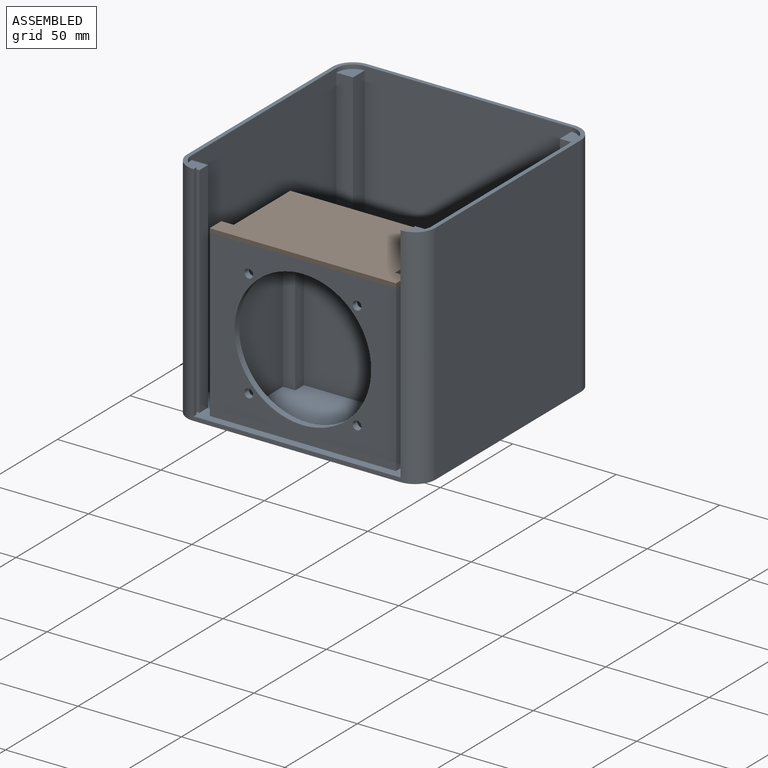
[diagram: assembled view]
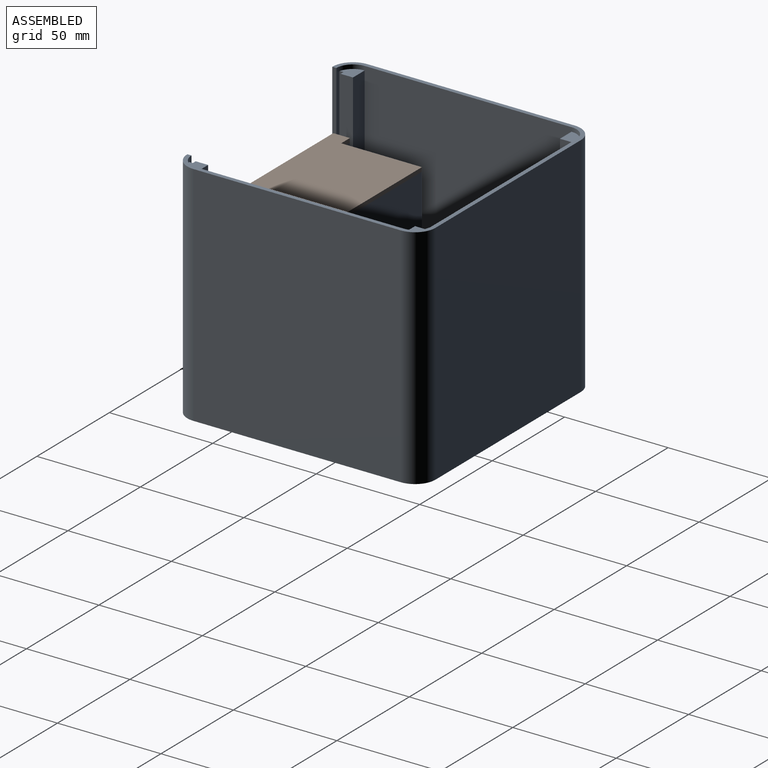
[diagram: assembled view, second angle]
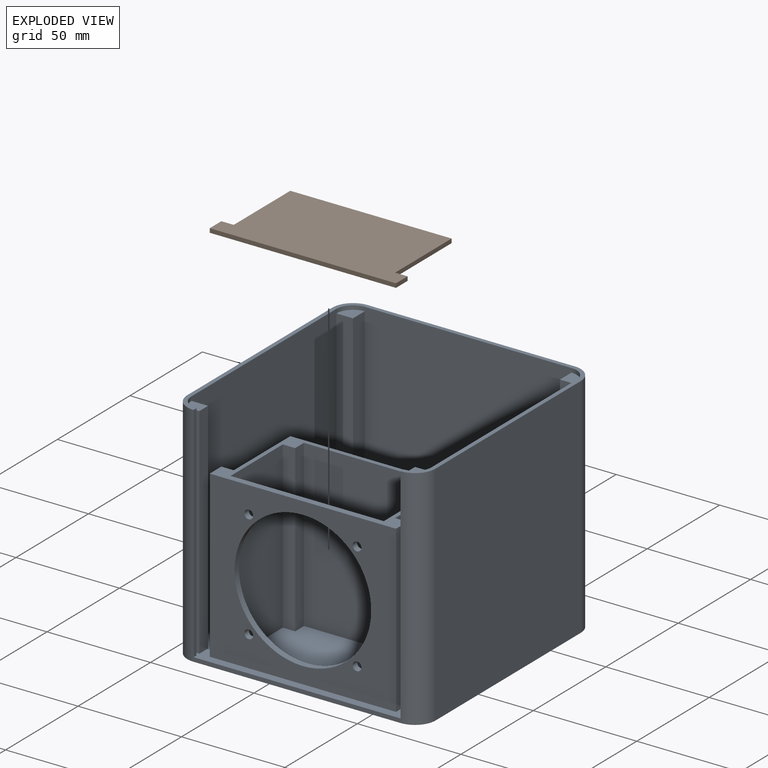
[diagram: exploded view]
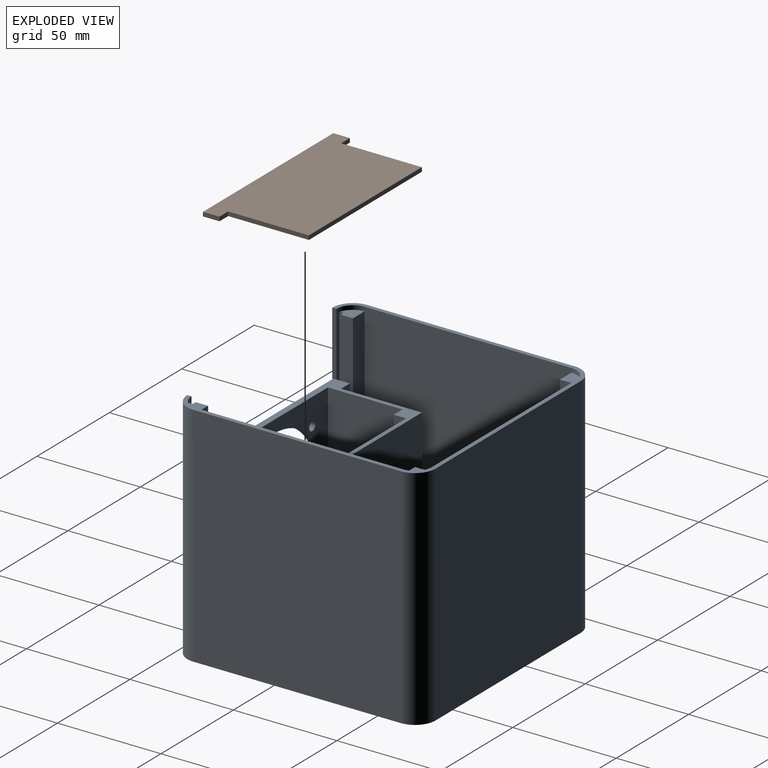
[diagram: exploded view, second angle]
FCSTD DOCUMENT  (FreeCAD 1.0R39109 (Git))
Label: boubox
License: All rights reserved
LicenseURL: https://en.wikipedia.org/wiki/All_rights_reserved
objects: App::Link×2, App::FeaturePython×2, Assembly::JointGroup×1, Assembly::AssemblyObject×1
EXTERNAL_REF file=bouboux_base.FCStd obj=Body
EXTERNAL_REF file=speaker_cover.FCStd obj=Body001

FEATURE [App::Link] Body
  LinkPlacement = pos=(7.38659,4.95915,2.14746) rot=(0,0,1;0rad)
  LinkedObject = -> <external bouboux_base.FCStd>#Body
  Placement = pos=(7.38659,4.95915,2.14746) rot=(0,0,1;0rad)
FEATURE [App::FeaturePython] GroundedJoint001  # Assembly grounded joint (typed FeaturePython)
  ObjectToGround = -> Body
  Placement = pos=(7.38659,4.95915,2.14746) rot=(0,0,1;0rad)
FEATURE [App::Link] speaker_cover
  LinkPlacement = pos=(7.38659,4.95915,2.14746) rot=(0,0,1;0rad)
  LinkedObject = -> <external speaker_cover.FCStd>#Body001
  Placement = pos=(7.38659,4.95915,2.14746) rot=(0,0,1;0rad)
FEATURE [App::FeaturePython] Joint  label="Fixed"  # Assembly joint (typed FeaturePython)
  Activated = true
  AngleMax = 0
  AngleMin = 0
  Detach1 = false
  Detach2 = false
  Distance = 0
  Distance2 = 0
  EnableAngleMax = false
  EnableAngleMin = false
  EnableLengthMax = false
  EnableLengthMin = false
  JointType = 0 (Fixed)
  LengthMax = 0
  LengthMin = 0
  Placement1 = pos=(15,4,82) rot=(0,0,1;0rad)
  Placement2 = pos=(15,4,82) rot=(0,0,1;0rad)
  Reference1 = -> Assembly [speaker_cover.Vertex1,speaker_cover.Vertex1]
  Reference2 = -> Assembly [Body.Vertex68,Body.Vertex68]
FEATURE [Assembly::JointGroup] Joints
  Group = -> [GroundedJoint001,Joint]
FEATURE [Assembly::AssemblyObject] Assembly
  Group = -> [Joints,Body,GroundedJoint001,speaker_cover,Joint]
  Origin = -> Origin
  Type = Assembly

RESOLVED EXTERNAL PARTS (link-assembly join: the EXTERNAL_REF files above that resolve inside this repo's crawl, each included once):
---- part bouboux_base.FCStd = doc fcstd_2d025fac084d ----
FCSTD DOCUMENT  (FreeCAD 1.0R39109 (Git))
Label: bouboux_base
License: All rights reserved
LicenseURL: https://en.wikipedia.org/wiki/All_rights_reserved
objects: PartDesign::Pocket×15, Sketcher::SketchObject×13, PartDesign::Pad×8, App::VarSet×1, PartDesign::Fillet×1, PartDesign::Body×1, Measure::MeasureRadius×1
note: 99 computed .brp shape members not serialized (recipe doc carries the construction recipe); baked Part::Feature solids carry a one-line shape summary decoded from their .brp

FEATURE [Sketcher::SketchObject] Sketch
  ArcFitTolerance = 1e-06
  AttachmentSupport = -> [XY_Plane]
  FullyConstrained = true
  MakeInternals = false
  MapMode = 5
  sketch-geometry (4):
    g0: LineSegment StartX=0 StartY=0 StartZ=0 EndX=120 EndY=0 EndZ=0
    g1: LineSegment StartX=120 StartY=0 StartZ=0 EndX=120 EndY=120 EndZ=0
    g2: LineSegment StartX=120 StartY=120 StartZ=0 EndX=0 EndY=120 EndZ=0
    g3: LineSegment StartX=0 StartY=120 StartZ=0 EndX=0 EndY=0 EndZ=0
  constraints (11):
    c: Coincident(g0,g1)
    c: Coincident(g1,g2)
    c: Coincident(g2,g3)
    c: Coincident(g3,g0)
    c: Horizontal(g0)
    c: Horizontal(g2)
    c: Vertical(g1)
    c: Vertical(g3)
    c: Distance(g1,g3) = 120
    c: Coincident(g0,g-1)
    c: DistanceY(g1,g1) = 120
FEATURE [PartDesign::Pad] Pad
  Direction = (0,0,1)
  Length = 110
  Length2 = 10
  Profile = -> Sketch
  ReferenceAxis = -> Sketch [N_Axis]
  Refine = true
  Suppressed = false
  Type = 0
  expr: Length = VarSet.full_height
FEATURE [App::VarSet] VarSet
  full_height = 110
  round_radius = 10
  speaker_cavity_height = 80
  width = 2
FEATURE [PartDesign::Fillet] Fillet
  Base = -> Pad [Edge5,Edge2,Edge1,Edge8]
  BaseFeature = -> Pad
  Radius = 10
  Refine = true
  SupportTransform = false
  Suppressed = false
  UseAllEdges = false
  expr: Radius = VarSet.round_radius
FEATURE [Sketcher::SketchObject] Sketch001
  ArcFitTolerance = 1e-06
  AttachmentSupport = -> [Fillet]
  ExternalGeometry = -> [Fillet]
  FullyConstrained = true
  MakeInternals = false
  MapMode = 5
  Placement = pos=(0,0,0) rot=(1,0,0;1.5708rad)
  sketch-geometry (4):
    g0: LineSegment StartX=10 StartY=110 StartZ=0 EndX=10 EndY=5 EndZ=0
    g1: LineSegment StartX=10 StartY=5 StartZ=0 EndX=110 EndY=5 EndZ=0
    g2: LineSegment StartX=110 StartY=5 StartZ=0 EndX=110 EndY=110 EndZ=0
    g3: LineSegment StartX=110 StartY=110 StartZ=0 EndX=10 EndY=110 EndZ=0
  constraints (12):
    c: Coincident(g0,g1)
    c: Coincident(g1,g2)
    c: Coincident(g2,g3)
    c: Coincident(g3,g0)
    c: Vertical(g0)
    c: Vertical(g2)
    c: Horizontal(g1)
    c: Horizontal(g3)
    c: Distance(g-4,g1) = 5
    c: PointOnObject(g0,g-5)
    c: PointOnObject(g1,g-6)
    c: PointOnObject(g0,g-3)
FEATURE [PartDesign::Pocket] Pocket  label="front_plate_pocket"
  BaseFeature = -> Fillet
  Direction = (0,1,-2e-16)
  Length = 2
  Length2 = 5
  Profile = -> Sketch001
  ReferenceAxis = -> Sketch001 [N_Axis]
  Refine = true
  Suppressed = false
  Type = 0
FEATURE [Sketcher::SketchObject] Sketch002
  ArcFitTolerance = 1e-06
  AttachmentSupport = -> [Pocket]
  ExternalGeometry = -> [Pocket]
  FullyConstrained = true
  MakeInternals = false
  MapMode = 5
  Placement = pos=(0,2,0) rot=(1,0,0;1.5708rad)
  sketch-geometry (2):
    g0: Circle CenterX=60 CenterY=43 CenterZ=0 NormalX=0 NormalY=0 NormalZ=1 AngleXU=0 Radius=33
    g1: GeomPoint X=60 Y=5 Z=0
  constraints (4):
    c: Diameter(g0) = 66
    c: Symmetric(g-3,g-3,g1)
    c: Vertical(g1,g0)
    c: Distance(g0,g-3) = 5
FEATURE [PartDesign::Pocket] Pocket001  label="speaker_hole"
  BaseFeature = -> Pocket
  Direction = (0,1,-2e-16)
  Length = 30
  Length2 = 5
  Profile = -> Sketch002
  ReferenceAxis = -> Sketch002 [N_Axis]
  Refine = true
  Suppressed = false
  Type = 0
FEATURE [Sketcher::SketchObject] Sketch003
  ArcFitTolerance = 1e-06
  AttachmentSupport = -> [Pocket001]
  ExternalGeometry = -> [Pocket001]
  FullyConstrained = true
  MakeInternals = false
  MapMode = 5
  Placement = pos=(0,0,110) rot=(0,0,1;0rad)
  expr: Constraints[13] = VarSet.width
  expr: Constraints[21] = VarSet.width
  expr: Constraints[28] = VarSet.width
  expr: Constraints[5] = VarSet.width
  sketch-geometry (12):
    g0: LineSegment StartX=110 StartY=4 StartZ=0 EndX=10 EndY=4 EndZ=0
    g1: LineSegment StartX=10 StartY=4 StartZ=0 EndX=10 EndY=10 EndZ=0
    g2: LineSegment StartX=10 StartY=10 StartZ=0 EndX=2 EndY=10 EndZ=0
    g3: LineSegment StartX=2 StartY=10 StartZ=0 EndX=2 EndY=110 EndZ=0
    g4: LineSegment StartX=2 StartY=110 StartZ=0 EndX=10 EndY=110 EndZ=0
    g5: LineSegment StartX=10 StartY=110 StartZ=0 EndX=10 EndY=118 EndZ=0
    g6: LineSegment StartX=10 StartY=118 StartZ=0 EndX=110 EndY=118 EndZ=0
    g7: LineSegment StartX=110 StartY=110 StartZ=0 EndX=110 EndY=118 EndZ=0
    g8: LineSegment StartX=110 StartY=4 StartZ=0 EndX=110 EndY=10 EndZ=0
    g9: LineSegment StartX=110 StartY=10 StartZ=0 EndX=118 EndY=10 EndZ=0
    g10: LineSegment StartX=118 StartY=10 StartZ=0 EndX=118 EndY=110 EndZ=0
    g11: LineSegment StartX=118 StartY=110 StartZ=0 EndX=110 EndY=110 EndZ=0
  constraints (32):
    c: Horizontal(g0)
    c: Coincident(g0,g1)
    c: Coincident(g1,g-3)
    c: Coincident(g1,g2)
    c: Horizontal(g2)
    c: DistanceX(g-8,g2) = 2
    c: Coincident(g2,g3)
    c: Vertical(g3)
    c: Coincident(g3,g4)
    c: Coincident(g4,g-9)
    c: Horizontal(g4)
    c: Coincident(g4,g5)
    c: Vertical(g5)
    c: DistanceY(g5,g-10) = 2
    c: Coincident(g5,g6)
    c: Horizontal(g6)
    c: Coincident(g7,g-11)
    c: Vertical(g7)
    c: Coincident(g6,g7)
    c: Coincident(g8,g-6)
    c: Coincident(g8,g9)
    c: DistanceX(g9,g-7) = 2
    c: Horizontal(g9)
    c: Coincident(g9,g10)
    c: Vertical(g10)
    c: Coincident(g10,g11)
    c: Coincident(g11,g7)
    c: Horizontal(g11)
    c: DistanceY(g-4,g0) = 2
    c: Vertical(g1)
    c: Vertical(g8)
    c: Coincident(g8,g0)
FEATURE [PartDesign::Pocket] Pocket002
  BaseFeature = -> Pocket001
  Direction = (0,0,-1)
  Length = 108
  Length2 = 5
  Profile = -> Sketch003
  ReferenceAxis = -> Sketch003 [N_Axis]
  Refine = true
  Suppressed = false
  Type = 0
  expr: Length = VarSet.full_height - VarSet.width
FEATURE [Sketcher::SketchObject] Sketch004
  ArcFitTolerance = 1e-06
  AttachmentSupport = -> [Pocket002]
  ExternalGeometry = -> [Pocket002]
  FullyConstrained = true
  MakeInternals = false
  MapMode = 5
  Placement = pos=(0,0,110) rot=(0,0,1;0rad)
  sketch-geometry (10):
    g0: LineSegment StartX=2 StartY=110 StartZ=0 EndX=2 EndY=10 EndZ=0
    g1: LineSegment StartX=10 StartY=2 StartZ=0 EndX=110 EndY=2 EndZ=0
    g2: LineSegment StartX=118 StartY=10 StartZ=0 EndX=118 EndY=110 EndZ=0
    g3: LineSegment StartX=110 StartY=118 StartZ=0 EndX=10 EndY=118 EndZ=0
    g4: ArcOfCircle CenterX=10 CenterY=110 CenterZ=0 NormalX=0 NormalY=0 NormalZ=1 AngleXU=0 Radius=8 StartAngle=1.5708 EndAngle=3.14159
    g5: ArcOfCircle CenterX=10 CenterY=10 CenterZ=0 NormalX=0 NormalY=0 NormalZ=1 AngleXU=0 Radius=8 StartAngle=3.14159 EndAngle=4.71239
    g6: ArcOfCircle CenterX=110 CenterY=10 CenterZ=0 NormalX=0 NormalY=0 NormalZ=1 AngleXU=0 Radius=8 StartAngle=4.71239 EndAngle=6.28319
    g7: ArcOfCircle CenterX=110 CenterY=110 CenterZ=0 NormalX=0 NormalY=0 NormalZ=1 AngleXU=0 Radius=8 StartAngle=-8.79e-14 EndAngle=1.5708
    g8: GeomPoint [constr] X=2 Y=118 Z=0
    g9: GeomPoint [constr] X=118 Y=2 Z=0
  constraints (21):
    c: Tangent(g0,g4) = -1.5708
    c: Tangent(g0,g5) = -1.5708
    c: Tangent(g1,g5) = -1.5708
    c: Tangent(g1,g6) = -1.5708
    c: Tangent(g2,g6) = -1.5708
    c: Tangent(g2,g7) = -1.5708
    c: Tangent(g3,g7) = -1.5708
    c: Tangent(g3,g4) = -1.5708
    c: Vertical(g0)
    c: Vertical(g2)
    c: Horizontal(g1)
    c: Horizontal(g3)
    c: Equal(g5,g6)
    c: Equal(g6,g7)
    c: PointOnObject(g8,g0)
    c: PointOnObject(g8,g3)
    c: PointOnObject(g9,g1)
    c: PointOnObject(g9,g2)
    c: Coincident(g1,g-15)
    c: Coincident(g3,g-13)
    c: Coincident(g0,g-8)
FEATURE [PartDesign::Pocket] Pocket003
  BaseFeature = -> Pocket002
  Direction = (0,0,-1)
  Length = 2
  Length2 = 5
  Profile = -> Sketch004
  ReferenceAxis = -> Sketch004 [N_Axis]
  Refine = true
  Suppressed = false
  Type = 0
  expr: Length = VarSet.width
FEATURE [Sketcher::SketchObject] Sketch005
  ArcFitTolerance = 1e-06
  AttachmentSupport = -> [Pocket003]
  ExternalGeometry = -> [Pocket003]
  FullyConstrained = true
  MakeInternals = false
  MapMode = 5
  Placement = pos=(0,0,2) rot=(0,0,1;0rad)
  expr: Constraints[12] = VarSet.width
  expr: Constraints[15] = VarSet.width
  expr: Constraints[7] = VarSet.width
  sketch-geometry (9):
    g0: LineSegment StartX=97 StartY=4 StartZ=0 EndX=97 EndY=44 EndZ=0
    g1: LineSegment StartX=97 StartY=4 StartZ=0 EndX=99 EndY=4 EndZ=0
    g2: LineSegment StartX=99 StartY=4 StartZ=0 EndX=99 EndY=44 EndZ=0
    g3: LineSegment StartX=99 StartY=44 StartZ=0 EndX=99 EndY=46 EndZ=0
    g4: LineSegment StartX=99 StartY=46 StartZ=0 EndX=21 EndY=46 EndZ=0
    g5: LineSegment StartX=23 StartY=44 StartZ=0 EndX=97 EndY=44 EndZ=0
    g6: LineSegment StartX=23 StartY=4 StartZ=0 EndX=23 EndY=44 EndZ=0
    g7: LineSegment StartX=21 StartY=46 StartZ=0 EndX=21 EndY=4 EndZ=0
    g8: LineSegment StartX=23 StartY=4 StartZ=0 EndX=21 EndY=4 EndZ=0
  constraints (27):
    c: Vertical(g0)
    c: PointOnObject(g0,g-3)
    c: DistanceY(g0,g0) = 40
    c: Coincident(g0,g1)
    c: PointOnObject(g1,g-3)
    c: Coincident(g1,g2)
    c: Vertical(g2)
    c: DistanceX(g1,g1) = 2
    c: Coincident(g3,g4)
    c: Vertical(g3)
    c: Horizontal(g4)
    c: Coincident(g3,g2)
    c: DistanceY(g3,g3) = 2
    c: Coincident(g5,g0)
    c: Horizontal(g5)
    c: DistanceY(g5,g4) = 2
    c: Distance(g0,g-9) = 4
    c: Vertical(g6)
    c: PointOnObject(g6,g-3)
    c: DistanceX(g6,g-9) = 4
    c: Coincident(g6,g5)
    c: Coincident(g7,g4)
    c: Vertical(g7)
    c: PointOnObject(g7,g-3)
    c: Distance(g6,g7) = 2
    c: Coincident(g8,g6)
    c: Coincident(g8,g7)
FEATURE [Sketcher::SketchObject] Sketch007  label="speaker_fixes"
  ArcFitTolerance = 1e-06
  AttachmentSupport = -> [Pocket003]
  ExternalGeometry = -> [Sketch002]
  FullyConstrained = true
  MakeInternals = false
  MapMode = 5
  Placement = pos=(0,2,0) rot=(1,0,0;1.5708rad)
  sketch-geometry (9):
    g0: Circle CenterX=60 CenterY=43 CenterZ=0 NormalX=0 NormalY=0 NormalZ=1 AngleXU=0 Radius=37
    g1: LineSegment StartX=33.837 StartY=69.163 StartZ=0 EndX=86.163 EndY=16.837 EndZ=0
    g2: LineSegment StartX=33.837 StartY=16.837 StartZ=0 EndX=86.163 EndY=69.163 EndZ=0
    g3: Circle CenterX=86.163 CenterY=16.837 CenterZ=0 NormalX=0 NormalY=0 NormalZ=1 AngleXU=0 Radius=2.1
    g4: Circle CenterX=86.163 CenterY=69.163 CenterZ=0 NormalX=0 NormalY=0 NormalZ=1 AngleXU=0 Radius=7.3e-15
    g5: Circle CenterX=86.163 CenterY=69.163 CenterZ=0 NormalX=0 NormalY=0 NormalZ=1 AngleXU=0 Radius=2e-16
    g6: Circle CenterX=86.163 CenterY=69.163 CenterZ=0 NormalX=0 NormalY=0 NormalZ=1 AngleXU=0 Radius=2.1
    g7: Circle CenterX=33.837 CenterY=69.163 CenterZ=0 NormalX=0 NormalY=0 NormalZ=1 AngleXU=0 Radius=2.1
    g8: Circle CenterX=33.837 CenterY=16.837 CenterZ=0 NormalX=0 NormalY=0 NormalZ=1 AngleXU=0 Radius=2.1
  constraints (22):
    c: Coincident(g0,g-3)
    c: Diameter(g0) = 74
    c: Angle(g1) = -0.785398
    c: PointOnObject(g0,g1)
    c: PointOnObject(g1,g0)
    c: PointOnObject(g1,g0)
    c: Angle(g2) = 0.785398
    c: PointOnObject(g2,g0)
    c: PointOnObject(g0,g2)
    c: PointOnObject(g2,g0)
    c: Diameter(g3) = 4.2
    c: Coincident(g3,g1)
    c: Coincident(g4,g2)
    c: Tangent(g4,g0)
    c: Coincident(g5,g2)
    c: Tangent(g5,g0)
    c: Coincident(g6,g2)
    c: Diameter(g6) = 4.2
    c: Diameter(g7) = 4.2
    c: Coincident(g7,g1)
    c: Diameter(g8) = 4.2
    c: Coincident(g8,g2)
FEATURE [PartDesign::Pocket] Pocket004  label="speaker_mounting_holes"
  BaseFeature = -> Pocket003
  Direction = (0,1,-2e-16)
  Length = 2
  Length2 = 5
  Profile = -> Sketch007 [Edge4,Edge5,Edge6,Edge7]
  ReferenceAxis = -> Sketch007 [N_Axis]
  Refine = true
  Suppressed = false
  Type = 0
  expr: Length = VarSet.width
FEATURE [PartDesign::Pad] Pad001  label="speaker_cavity"
  BaseFeature = -> Pocket004
  Direction = (0,0,1)
  Length = 80
  Length2 = 10
  Profile = -> Sketch005
  ReferenceAxis = -> Sketch005 [N_Axis]
  Refine = true
  Suppressed = false
  Type = 0
  expr: Length = VarSet.speaker_cavity_height
FEATURE [Sketcher::SketchObject] Sketch008
  ArcFitTolerance = 1e-06
  AttachmentSupport = -> [Pad001]
  ExternalGeometry = -> [Pad001]
  FullyConstrained = true
  MakeInternals = false
  MapMode = 5
  Placement = pos=(0,2,0) rot=(1,0,0;1.5708rad)
  sketch-geometry (8):
    g0: LineSegment StartX=99 StartY=5 StartZ=0 EndX=99 EndY=82 EndZ=0
    g1: LineSegment StartX=99 StartY=82 StartZ=0 EndX=21 EndY=82 EndZ=0
    g2: LineSegment StartX=21 StartY=82 StartZ=0 EndX=21 EndY=5 EndZ=0
    g3: LineSegment StartX=21 StartY=5 StartZ=0 EndX=10 EndY=5 EndZ=0
    g4: LineSegment StartX=10 StartY=5 StartZ=0 EndX=10 EndY=108 EndZ=0
    g5: LineSegment StartX=10 StartY=108 StartZ=0 EndX=110 EndY=108 EndZ=0
    g6: LineSegment StartX=110 StartY=108 StartZ=0 EndX=110 EndY=5 EndZ=0
    g7: LineSegment StartX=110 StartY=5 StartZ=0 EndX=99 EndY=5 EndZ=0
  constraints (20):
    c: Coincident(g0,g1)
    c: Coincident(g1,g2)
    c: Horizontal(g1)
    c: Vertical(g0)
    c: Vertical(g2)
    c: Coincident(g0,g-3)
    c: PointOnObject(g2,g-5)
    c: Coincident(g2,g3)
    c: Coincident(g3,g-7)
    c: Horizontal(g3)
    c: Coincident(g3,g4)
    c: Vertical(g4)
    c: Coincident(g4,g5)
    c: Horizontal(g5)
    c: Coincident(g5,g6)
    c: Coincident(g6,g7)
    c: Coincident(g7,g0)
    c: Coincident(g6,g-8)
    c: PointOnObject(g0,g-9)
    c: Coincident(g5,g-8)
FEATURE [PartDesign::Pad] Pad002
  BaseFeature = -> Pad001
  Direction = (0,-1,2e-16)
  Length = 2
  Length2 = 10
  Profile = -> Sketch008
  ReferenceAxis = -> Sketch008 [N_Axis]
  Refine = true
  Suppressed = false
  Type = 0
  expr: Length = VarSet.width
FEATURE [Sketcher::SketchObject] Sketch009
  ArcFitTolerance = 1e-06
  AttachmentSupport = -> [Pad002]
  ExternalGeometry = -> [Pad002]
  FullyConstrained = true
  MakeInternals = false
  MapMode = 5
  Placement = pos=(0,4,0) rot=(0,0.707107,0.707107;3.14159rad)
  sketch-geometry (8):
    g0: LineSegment StartX=-99 StartY=2 StartZ=0 EndX=-99 EndY=108 EndZ=0
    g1: LineSegment StartX=-99 StartY=108 StartZ=0 EndX=-110 EndY=108 EndZ=0
    g2: LineSegment StartX=-110 StartY=108 StartZ=0 EndX=-110 EndY=2 EndZ=0
    g3: LineSegment StartX=-110 StartY=2 StartZ=0 EndX=-99 EndY=2 EndZ=0
    g4: LineSegment StartX=-21 StartY=2 StartZ=0 EndX=-10 EndY=2 EndZ=0
    g5: LineSegment StartX=-10 StartY=2 StartZ=0 EndX=-10 EndY=108 EndZ=0
    g6: LineSegment StartX=-10 StartY=108 StartZ=0 EndX=-21 EndY=108 EndZ=0
    g7: LineSegment StartX=-21 StartY=108 StartZ=0 EndX=-21 EndY=2 EndZ=0
  constraints (20):
    c: Coincident(g0,g1)
    c: Coincident(g1,g2)
    c: Coincident(g2,g3)
    c: Coincident(g3,g0)
    c: Vertical(g0)
    c: Vertical(g2)
    c: Horizontal(g1)
    c: Horizontal(g3)
    c: Coincident(g0,g-5)
    c: Coincident(g1,g-4)
    c: Coincident(g4,g5)
    c: Coincident(g5,g6)
    c: Coincident(g6,g7)
    c: Coincident(g7,g4)
    c: Horizontal(g4)
    c: Horizontal(g6)
    c: Vertical(g5)
    c: Vertical(g7)
    c: Coincident(g4,g-6)
    c: Coincident(g5,g-4)
FEATURE [PartDesign::Pocket] Pocket005
  BaseFeature = -> Pad002
  Direction = (0,-1,2e-16)
  Length = 2
  Length2 = 5
  Profile = -> Sketch009
  ReferenceAxis = -> Sketch009 [N_Axis]
  Refine = true
  Suppressed = false
  Type = 0
  expr: Length = VarSet.width
FEATURE [PartDesign::Pocket] Pocket006
  BaseFeature = -> Pocket005
  Direction = (0,-1,2e-16)
  Length = 5
  Length2 = 5
  Profile = -> Pocket005 [Face18]
  Refine = true
  Suppressed = false
  Type = 0
FEATURE [PartDesign::Pocket] Pocket007
  BaseFeature = -> Pocket006
  Direction = (0,-1,2e-16)
  Length = 5
  Length2 = 5
  Profile = -> Pocket006 [Face26]
  Refine = true
  Suppressed = false
  Type = 0
FEATURE [PartDesign::Pocket] Pocket008
  BaseFeature = -> Pocket007
  Direction = (0,-1.5e-15,-1)
  Length = 26
  Length2 = 5
  Profile = -> Pocket007 [Face22]
  Refine = true
  Suppressed = false
  Type = 0
FEATURE [PartDesign::Pocket] Pocket009
  BaseFeature = -> Pocket008
  Direction = (0,-2e-16,-1)
  Length = 3
  Length2 = 5
  Profile = -> Pocket008 [Face12]
  Refine = true
  Suppressed = false
  Type = 0
FEATURE [Sketcher::SketchObject] Sketch010
  ArcFitTolerance = 1e-06
  AttachmentSupport = -> [Pocket009]
  ExternalGeometry = -> [Pocket009]
  FullyConstrained = true
  MakeInternals = false
  MapMode = 5
  Placement = pos=(10,0,0) rot=(0.57735,0.57735,0.57735;2.0944rad)
  sketch-geometry (4):
    g0: LineSegment StartX=4 StartY=2 StartZ=0 EndX=4 EndY=108 EndZ=0
    g1: LineSegment StartX=4 StartY=108 StartZ=0 EndX=2 EndY=108 EndZ=0
    g2: LineSegment StartX=2 StartY=108 StartZ=0 EndX=2 EndY=2 EndZ=0
    g3: LineSegment StartX=2 StartY=2 StartZ=0 EndX=4 EndY=2 EndZ=0
  constraints (10):
    c: Coincident(g0,g1)
    c: Coincident(g1,g2)
    c: Coincident(g2,g3)
    c: Coincident(g3,g0)
    c: Vertical(g0)
    c: Vertical(g2)
    c: Horizontal(g1)
    c: Horizontal(g3)
    c: Coincident(g1,g-3)
    c: Coincident(g-6,g0)
FEATURE [PartDesign::Pocket] Pocket010
  BaseFeature = -> Pocket009
  Direction = (-1,0,0)
  Length = 2
  Length2 = 5
  Profile = -> Sketch010
  ReferenceAxis = -> Sketch010 [N_Axis]
  Refine = true
  Suppressed = false
  Type = 0
  expr: Length = VarSet.width
FEATURE [Sketcher::SketchObject] Sketch011
  ArcFitTolerance = 1e-06
  AttachmentSupport = -> [Pocket010]
  ExternalGeometry = -> [Pocket010]
  FullyConstrained = true
  MakeInternals = false
  MapMode = 5
  Placement = pos=(110,0,0) rot=(0.57735,-0.57735,-0.57735;2.0944rad)
  sketch-geometry (4):
    g0: LineSegment StartX=-4 StartY=2 StartZ=0 EndX=-2 EndY=2 EndZ=0
    g1: LineSegment StartX=-2 StartY=2 StartZ=0 EndX=-2 EndY=108 EndZ=0
    g2: LineSegment StartX=-2 StartY=108 StartZ=0 EndX=-4 EndY=108 EndZ=0
    g3: LineSegment StartX=-4 StartY=108 StartZ=0 EndX=-4 EndY=2 EndZ=0
  constraints (10):
    c: Coincident(g0,g1)
    c: Coincident(g1,g2)
    c: Coincident(g2,g3)
    c: Coincident(g3,g0)
    c: Horizontal(g0)
    c: Horizontal(g2)
    c: Vertical(g1)
    c: Vertical(g3)
    c: Coincident(g0,g-3)
    c: Coincident(g1,g-4)
FEATURE [PartDesign::Pocket] Pocket011
  BaseFeature = -> Pocket010
  Direction = (1,0,0)
  Length = 2
  Length2 = 5
  Profile = -> Sketch011
  ReferenceAxis = -> Sketch011 [N_Axis]
  Refine = true
  Suppressed = false
  Type = 0
  expr: Length = VarSet.width
FEATURE [PartDesign::Pad] Pad003
  BaseFeature = -> Pocket011
  Direction = (0,1,0)
  Length = 4
  Length2 = 10
  Profile = -> Pocket011 [Face52]
  Refine = true
  Suppressed = false
  Type = 0
FEATURE [PartDesign::Pocket] Pocket012
  BaseFeature = -> Pad003
  Direction = (0,1,0)
  Length = 2
  Length2 = 5
  Profile = -> Pad003 [Face34]
  Refine = true
  Suppressed = false
  Type = 0
FEATURE [PartDesign::Pad] Pad004
  BaseFeature = -> Pocket012
  Direction = (0,1,0)
  Length = 2
  Length2 = 10
  Profile = -> Pocket012 [Face47]
  Refine = true
  Suppressed = false
  Type = 0
FEATURE [PartDesign::Pocket] Pocket013
  BaseFeature = -> Pad004
  Direction = (0,-1,0)
  Length = 3
  Length2 = 5
  Profile = -> Pad004 [Face49]
  Refine = true
  Suppressed = false
  Type = 0
FEATURE [PartDesign::Pad] Pad005
  BaseFeature = -> Pocket013
  Direction = (0,1,0)
  Length = 5
  Length2 = 10
  Profile = -> Pocket013 [Face32]
  Refine = true
  Suppressed = false
  Type = 0
FEATURE [PartDesign::Pocket] Pocket014
  BaseFeature = -> Pad005
  Direction = (0,1,0)
  Length = 5
  Length2 = 5
  Profile = -> Pad005 [Face2]
  Refine = true
  Suppressed = false
  Type = 0
FEATURE [Sketcher::SketchObject] Sketch012
  ArcFitTolerance = 1e-06
  AttachmentSupport = -> [Pocket014]
  ExternalGeometry = -> [Pocket014]
  FullyConstrained = true
  MakeInternals = false
  MapMode = 5
  Placement = pos=(0,0,2) rot=(0,0,1;0rad)
  sketch-geometry (8):
    g0: LineSegment StartX=23 StartY=49 StartZ=0 EndX=23 EndY=43 EndZ=0
    g1: LineSegment StartX=23 StartY=43 StartZ=0 EndX=29 EndY=43 EndZ=0
    g2: LineSegment StartX=29 StartY=43 StartZ=0 EndX=29 EndY=49 EndZ=0
    g3: LineSegment StartX=29 StartY=49 StartZ=0 EndX=23 EndY=49 EndZ=0
    g4: LineSegment StartX=97 StartY=49 StartZ=0 EndX=91 EndY=49 EndZ=0
    g5: LineSegment StartX=91 StartY=49 StartZ=0 EndX=91 EndY=43 EndZ=0
    g6: LineSegment StartX=91 StartY=43 StartZ=0 EndX=97 EndY=43 EndZ=0
    g7: LineSegment StartX=97 StartY=43 StartZ=0 EndX=97 EndY=49 EndZ=0
  constraints (22):
    c: Coincident(g0,g1)
    c: Coincident(g1,g2)
    c: Coincident(g2,g3)
    c: Coincident(g3,g0)
    c: Vertical(g0)
    c: Vertical(g2)
    c: Horizontal(g1)
    c: Horizontal(g3)
    c: Distance(g0,g2) = 6
    c: Distance(g1,g3) = 6
    c: Coincident(g0,g-4)
    c: Coincident(g4,g5)
    c: Coincident(g5,g6)
    c: Coincident(g6,g7)
    c: Coincident(g7,g4)
    c: Horizontal(g4)
    c: Horizontal(g6)
    c: Vertical(g5)
    c: Vertical(g7)
    c: Distance(g5,g7) = 6
    c: Distance(g4,g6) = 6
    c: Coincident(g4,g-5)
FEATURE [PartDesign::Pad] Pad006
  BaseFeature = -> Pocket014
  Direction = (0,0,1)
  Length = 80
  Length2 = 10
  Profile = -> Sketch012
  ReferenceAxis = -> Sketch012 [N_Axis]
  Refine = true
  Suppressed = false
  Type = 0
FEATURE [Sketcher::SketchObject] Sketch013
  ArcFitTolerance = 1e-06
  AttachmentSupport = -> [Pad006]
  ExternalGeometry = -> [Pad006]
  FullyConstrained = true
  MakeInternals = false
  MapMode = 5
  Placement = pos=(0,0,2) rot=(0,0,1;0rad)
  sketch-geometry (8):
    g0: LineSegment StartX=99 StartY=4 StartZ=0 EndX=105 EndY=4 EndZ=0
    g1: LineSegment StartX=105 StartY=4 StartZ=0 EndX=105 EndY=12 EndZ=0
    g2: LineSegment StartX=105 StartY=12 StartZ=0 EndX=99 EndY=12 EndZ=0
    g3: LineSegment StartX=99 StartY=12 StartZ=0 EndX=99 EndY=4 EndZ=0
    g4: LineSegment StartX=21 StartY=4 StartZ=0 EndX=21 EndY=12 EndZ=0
    g5: LineSegment StartX=21 StartY=12 StartZ=0 EndX=15 EndY=12 EndZ=0
    g6: LineSegment StartX=15 StartY=12 StartZ=0 EndX=15 EndY=4 EndZ=0
    g7: LineSegment StartX=15 StartY=4 StartZ=0 EndX=21 EndY=4 EndZ=0
  constraints (22):
    c: Coincident(g0,g1)
    c: Coincident(g1,g2)
    c: Coincident(g2,g3)
    c: Coincident(g3,g0)
    c: Horizontal(g0)
    c: Horizontal(g2)
    c: Vertical(g1)
    c: Vertical(g3)
    c: Distance(g1,g3) = 6
    c: Distance(g0,g2) = 8
    c: Coincident(g0,g-5)
    c: Coincident(g4,g5)
    c: Coincident(g5,g6)
    c: Coincident(g6,g7)
    c: Coincident(g7,g4)
    c: Vertical(g4)
    c: Vertical(g6)
    c: Horizontal(g5)
    c: Horizontal(g7)
    c: Distance(g4,g6) = 6
    c: Distance(g5,g7) = 8
    c: Coincident(g4,g-5)
FEATURE [PartDesign::Pad] Pad007
  BaseFeature = -> Pad006
  Direction = (0,0,1)
  Length = 80
  Length2 = 10
  Profile = -> Sketch013
  ReferenceAxis = -> Sketch013 [N_Axis]
  Refine = true
  Suppressed = false
  Type = 0
FEATURE [PartDesign::Body] Body
  AllowCompound = false
  Group = -> [Sketch,Pad,Fillet,Sketch001,Pocket,Sketch002,Pocket001,Sketch003,Pocket002,Sketch004,Pocket003,Sketch005,Sketch007,Pocket004,Pad001,Sketch008,Pad002,Sketch009,Pocket005,Pocket006,Pocket007,Pocket008,Pocket009,Sketch010,Pocket010,Sketch011,Pocket011,Pad003,Pocket012,Pad004,Pocket013,Pad005,Pocket014,Sketch012,Pad006,Sketch013,Pad007]
  Origin = -> Origin
  Tip = -> Pad007
FEATURE [Measure::MeasureRadius] Radius  label="Radius: 2,10 mm"
  Element = -> Body [Pad004.Edge110]
  Radius = 2.1
---- part speaker_cover.FCStd = doc fcstd_5d456a426c4f ----
FCSTD DOCUMENT  (FreeCAD 1.0R39109 (Git))
Label: speaker_cover
License: All rights reserved
LicenseURL: https://en.wikipedia.org/wiki/All_rights_reserved
objects: PartDesign::ShapeBinder×1, Sketcher::SketchObject×1, PartDesign::Pad×1, PartDesign::Body×1
note: 7 computed .brp shape members not serialized (recipe doc carries the construction recipe); baked Part::Feature solids carry a one-line shape summary decoded from their .brp

FEATURE [PartDesign::ShapeBinder] CopyPad007
  TraceSupport = false
FEATURE [Sketcher::SketchObject] Sketch
  ArcFitTolerance = 1e-06
  AttachmentSupport = -> [CopyPad007]
  ExternalGeometry = -> [CopyPad007]
  FullyConstrained = true
  MakeInternals = false
  MapMode = 5
  Placement = pos=(0,0,82) rot=(0,0,1;0rad)
  sketch-geometry (8):
    g0: LineSegment StartX=15 StartY=4 StartZ=0 EndX=15 EndY=12 EndZ=0
    g1: LineSegment StartX=15 StartY=12 StartZ=0 EndX=21 EndY=12 EndZ=0
    g2: LineSegment StartX=21 StartY=12 StartZ=0 EndX=21 EndY=51 EndZ=0
    g3: LineSegment StartX=21 StartY=51 StartZ=0 EndX=99 EndY=51 EndZ=0
    g4: LineSegment StartX=99 StartY=51 StartZ=0 EndX=99 EndY=12 EndZ=0
    g5: LineSegment StartX=99 StartY=12 StartZ=0 EndX=105 EndY=12 EndZ=0
    g6: LineSegment StartX=105 StartY=12 StartZ=0 EndX=105 EndY=4 EndZ=0
    g7: LineSegment StartX=105 StartY=4 StartZ=0 EndX=15 EndY=4 EndZ=0
  constraints (16):
    c: Coincident(g-6,g0)
    c: Coincident(g0,g-5)
    c: Coincident(g0,g1)
    c: Coincident(g1,g-5)
    c: Coincident(g1,g2)
    c: Coincident(g2,g-13)
    c: Coincident(g2,g3)
    c: Coincident(g3,g-13)
    c: Coincident(g3,g4)
    c: Coincident(g4,g-18)
    c: Coincident(g4,g5)
    c: Coincident(g5,g-18)
    c: Coincident(g5,g6)
    c: Coincident(g6,g-17)
    c: Coincident(g6,g7)
    c: Coincident(g7,g0)
FEATURE [PartDesign::Pad] Pad
  Direction = (0,0,1)
  Length = 2
  Length2 = 10
  Profile = -> Sketch
  ReferenceAxis = -> Sketch [N_Axis]
  Refine = true
  Suppressed = false
  Type = 0
  expr: Length = 2 mm
FEATURE [PartDesign::Body] Body001  label="speaker_cover"
  AllowCompound = false
  Group = -> [CopyPad007,Sketch,Pad]
  Origin = -> Origin001
  Placement = pos=(7.38659,4.95915,2.14746) rot=(0,0,1;0rad)
  Tip = -> Pad
